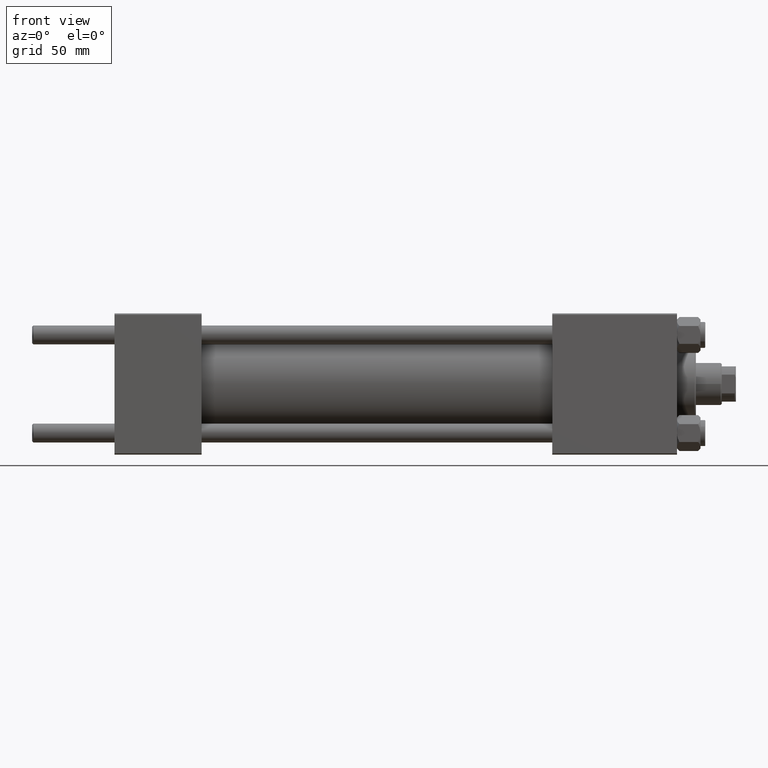
[diagram: clean part render]
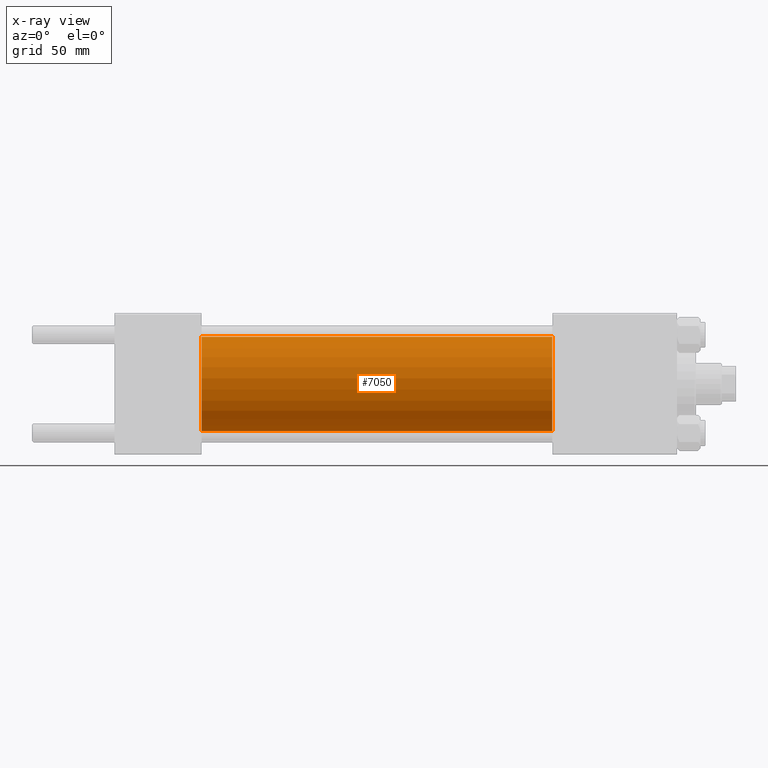
[diagram: x-ray — body ghosted, one internal face saturated and labeled with its STEP entity id]
A machine part, front view, then the same camera in x-ray: the body is ghosted and one INTERNAL B-rep face — a face not visible from any outside direction — is saturated and labeled: STEP entity #7050.
In plain terms, the highlighted cylindrical surface (partial cylindrical patch) has radius 20 mm, axis along (-1, -0, -0).
Its self-contained STEP definition (entity closure, byte-faithful):
#99 = EDGE_CURVE ( 'NONE', #32391, #43947, #14195, .T. ) ;
#1514 = VERTEX_POINT ( 'NONE', #16781 ) ;
#1792 = CARTESIAN_POINT ( 'NONE',  ( 186.0000000000000000, 0.000000000000000000, 0.000000000000000000 ) ) ;
#6174 = AXIS2_PLACEMENT_3D ( 'NONE', #1792, #20689, #9829 ) ;
#6278 = DIRECTION ( 'NONE',  ( -1.000000000000000000, -0.000000000000000000, -0.000000000000000000 ) ) ;
#6614 = EDGE_CURVE ( 'NONE', #11360, #1514, #37814, .T. ) ;
#7050 = ADVANCED_FACE ( 'NONE', ( #25793 ), #48731, .F. ) ;
#9814 = CARTESIAN_POINT ( 'NONE',  ( 186.0000000000000000, 0.000000000000000000, 20.00000000000000000 ) ) ;
#9829 = DIRECTION ( 'NONE',  ( 0.000000000000000000, 0.000000000000000000, -1.000000000000000000 ) ) ;
#11360 = VERTEX_POINT ( 'NONE', #19888 ) ;
#13320 = LINE ( 'NONE', #44849, #32065 ) ;
#14065 = DIRECTION ( 'NONE',  ( -1.000000000000000000, -0.000000000000000000, -0.000000000000000000 ) ) ;
#14195 = CIRCLE ( 'NONE', #6174, 20.00000000000000000 ) ;
#14424 = AXIS2_PLACEMENT_3D ( 'NONE', #35205, #31415, #24109 ) ;
#16781 = CARTESIAN_POINT ( 'NONE',  ( 37.00000000000000000, 2.449293598294706513E-15, -20.00000000000000000 ) ) ;
#19888 = CARTESIAN_POINT ( 'NONE',  ( 37.00000000000000000, 0.000000000000000000, 20.00000000000000000 ) ) ;
#20128 = ORIENTED_EDGE ( 'NONE', *, *, #44966, .T. ) ;
#20689 = DIRECTION ( 'NONE',  ( 1.000000000000000000, 0.000000000000000000, 0.000000000000000000 ) ) ;
#24109 = DIRECTION ( 'NONE',  ( 0.000000000000000000, 0.000000000000000000, -1.000000000000000000 ) ) ;
#24212 = CARTESIAN_POINT ( 'NONE',  ( 186.0000000000000000, 0.000000000000000000, 20.00000000000000000 ) ) ;
#25793 = FACE_OUTER_BOUND ( 'NONE', #45121, .T. ) ;
#26045 = CARTESIAN_POINT ( 'NONE',  ( 186.0000000000000000, 0.000000000000000000, 0.000000000000000000 ) ) ;
#26275 = DIRECTION ( 'NONE',  ( 0.000000000000000000, 0.000000000000000000, 1.000000000000000000 ) ) ;
#28061 = LINE ( 'NONE', #9814, #29513 ) ;
#29513 = VECTOR ( 'NONE', #6278, 1000.000000000000000 ) ;
#30293 = ORIENTED_EDGE ( 'NONE', *, *, #99, .T. ) ;
#31415 = DIRECTION ( 'NONE',  ( 1.000000000000000000, 0.000000000000000000, 0.000000000000000000 ) ) ;
#32065 = VECTOR ( 'NONE', #14065, 1000.000000000000000 ) ;
#32391 = VERTEX_POINT ( 'NONE', #24212 ) ;
#32480 = ORIENTED_EDGE ( 'NONE', *, *, #6614, .F. ) ;
#34631 = AXIS2_PLACEMENT_3D ( 'NONE', #26045, #45937, #26275 ) ;
#35205 = CARTESIAN_POINT ( 'NONE',  ( 37.00000000000000000, 0.000000000000000000, 0.000000000000000000 ) ) ;
#37814 = CIRCLE ( 'NONE', #14424, 20.00000000000000000 ) ;
#39696 = EDGE_CURVE ( 'NONE', #32391, #11360, #28061, .T. ) ;
#41370 = CARTESIAN_POINT ( 'NONE',  ( 186.0000000000000000, 2.449293598294706513E-15, -20.00000000000000000 ) ) ;
#43947 = VERTEX_POINT ( 'NONE', #41370 ) ;
#44849 = CARTESIAN_POINT ( 'NONE',  ( 186.0000000000000000, 2.449293598294706513E-15, -20.00000000000000000 ) ) ;
#44966 = EDGE_CURVE ( 'NONE', #43947, #1514, #13320, .T. ) ;
#45121 = EDGE_LOOP ( 'NONE', ( #30293, #20128, #32480, #47538 ) ) ;
#45937 = DIRECTION ( 'NONE',  ( -1.000000000000000000, -0.000000000000000000, -0.000000000000000000 ) ) ;
#47538 = ORIENTED_EDGE ( 'NONE', *, *, #39696, .F. ) ;
#48731 = CYLINDRICAL_SURFACE ( 'NONE', #34631, 20.00000000000000000 ) ;